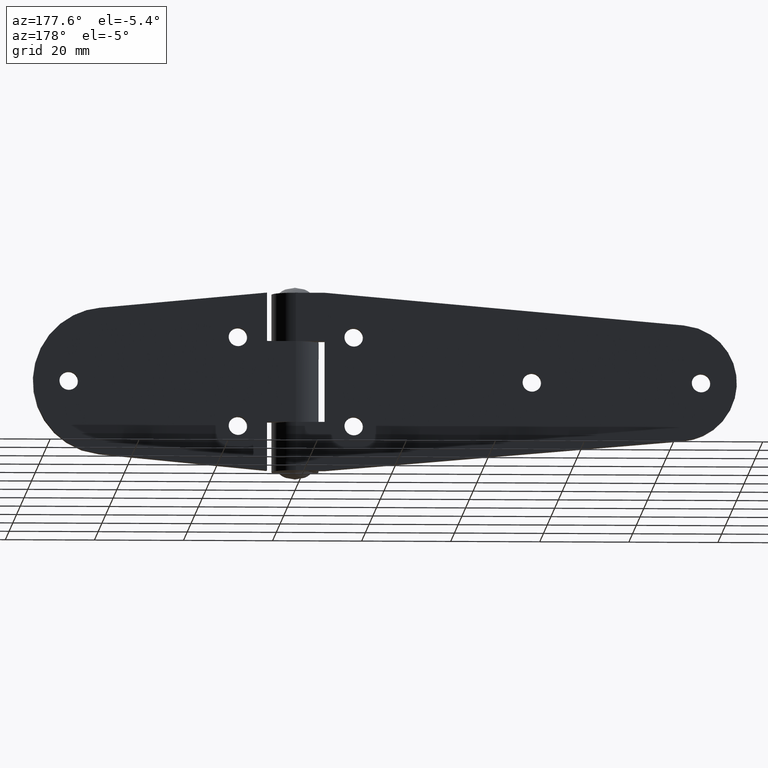
[diagram: clean part render]
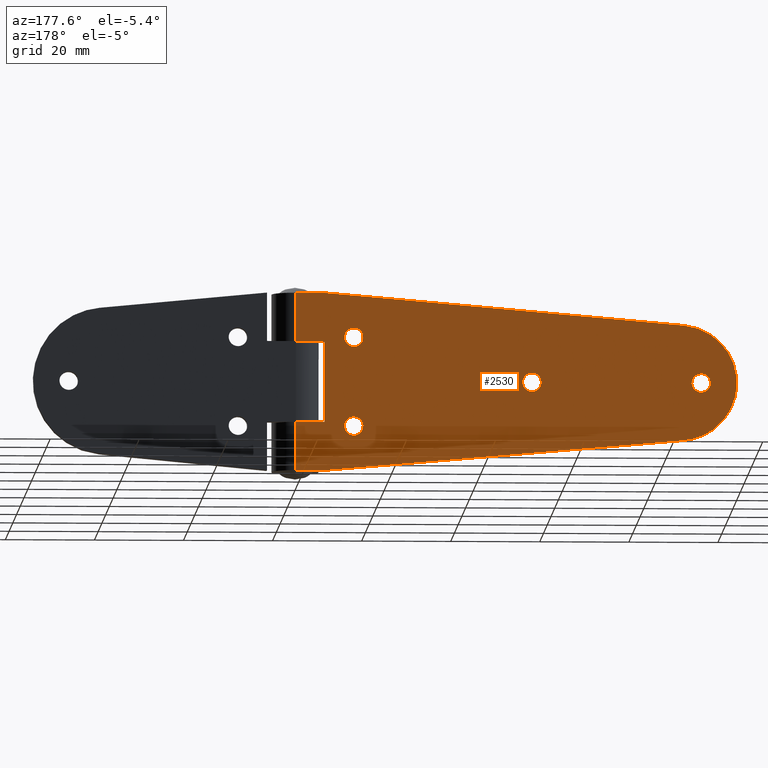
[diagram: same view with one face highlighted and labeled with its STEP entity id]
A machine part, auxiliary view. The second image highlights one B-rep face of the part: STEP entity #2530.
In plain terms, the highlighted face is a freeform B-spline surface patch.
Its self-contained STEP definition (entity closure, byte-faithful):
#1141=CARTESIAN_POINT('',(-93.093526400732628,5.299998000000000,20.164764102387469));
#1142=VERTEX_POINT('',#1141);
#1148=CARTESIAN_POINT('',(-91.0,5.299998000000000,22.100000000000001));
#1149=VERTEX_POINT('',#1148);
#1150=CARTESIAN_POINT('',(-91.0,5.299998000000000,22.100000000000001));
#1151=CARTESIAN_POINT('',(-92.941220029954195,5.299998000000001,22.099999999999998));
#1152=CARTESIAN_POINT('',(-93.093526400732628,5.299998000000000,20.164764102387476));
#1160=(BOUNDED_CURVE()B_SPLINE_CURVE(2,(#1150,#1151,#1152),.UNSPECIFIED.,.F.,.U.)B_SPLINE_CURVE_WITH_KNOTS((3,3),(0.0,0.236331300410210),.UNSPECIFIED.)CURVE()GEOMETRIC_REPRESENTATION_ITEM()RATIONAL_B_SPLINE_CURVE((1.0,0.723120658865939,0.969723355707355))REPRESENTATION_ITEM(''));
#1161=EDGE_CURVE('',#1149,#1142,#1160,.T.);
#1163=CARTESIAN_POINT('',(-88.906473599267372,5.299998000000000,19.835235897612531));
#1164=VERTEX_POINT('',#1163);
#1165=CARTESIAN_POINT('',(-88.906473599267372,5.299998000000000,19.835235897612524));
#1166=CARTESIAN_POINT('',(-88.899999999999991,5.299998000000000,19.917490773918590));
#1167=CARTESIAN_POINT('',(-88.899999999999991,5.299998000000000,20.0));
#1168=CARTESIAN_POINT('',(-88.899999999999977,5.299998000000000,22.099999999999998));
#1169=CARTESIAN_POINT('',(-91.0,5.299998000000000,22.100000000000001));
#1177=(BOUNDED_CURVE()B_SPLINE_CURVE(2,(#1165,#1166,#1167,#1168,#1169),.UNSPECIFIED.,.F.,.U.)B_SPLINE_CURVE_WITH_KNOTS((3,2,3),(0.736331300410209,0.750000000000000,1.0),.UNSPECIFIED.)CURVE()GEOMETRIC_REPRESENTATION_ITEM()RATIONAL_B_SPLINE_CURVE((0.969723355707354,0.983986122320608,1.0,0.707106781186548,1.0))REPRESENTATION_ITEM(''));
#1178=EDGE_CURVE('',#1164,#1149,#1177,.T.);
#1254=CARTESIAN_POINT('',(-91.0,5.299998000000000,17.899999999999999));
#1255=VERTEX_POINT('',#1254);
#1256=CARTESIAN_POINT('',(-91.0,5.299998000000000,17.899999999999999));
#1257=CARTESIAN_POINT('',(-89.058779970045777,5.299998000000000,17.900000000000002));
#1258=CARTESIAN_POINT('',(-88.906473599267372,5.299998000000000,19.835235897612524));
#1266=(BOUNDED_CURVE()B_SPLINE_CURVE(2,(#1256,#1257,#1258),.UNSPECIFIED.,.F.,.U.)B_SPLINE_CURVE_WITH_KNOTS((3,3),(0.500000000000000,0.736331300410209),.UNSPECIFIED.)CURVE()GEOMETRIC_REPRESENTATION_ITEM()RATIONAL_B_SPLINE_CURVE((1.0,0.723120658865940,0.969723355707353))REPRESENTATION_ITEM(''));
#1267=EDGE_CURVE('',#1255,#1164,#1266,.T.);
#1269=CARTESIAN_POINT('',(-93.093526400732628,5.299998000000000,20.164764102387473));
#1270=CARTESIAN_POINT('',(-93.100000000000009,5.299998000000000,20.082509226081410));
#1271=CARTESIAN_POINT('',(-93.100000000000009,5.299998000000000,20.0));
#1272=CARTESIAN_POINT('',(-93.100000000000009,5.299998000000000,17.899999999999999));
#1273=CARTESIAN_POINT('',(-91.0,5.299998000000000,17.899999999999999));
#1281=(BOUNDED_CURVE()B_SPLINE_CURVE(2,(#1269,#1270,#1271,#1272,#1273),.UNSPECIFIED.,.F.,.U.)B_SPLINE_CURVE_WITH_KNOTS((3,2,3),(0.236331300410209,0.250000000000000,0.500000000000000),.UNSPECIFIED.)CURVE()GEOMETRIC_REPRESENTATION_ITEM()RATIONAL_B_SPLINE_CURVE((0.969723355707355,0.983986122320608,1.0,0.707106781186548,1.0))REPRESENTATION_ITEM(''));
#1282=EDGE_CURVE('',#1142,#1255,#1281,.T.);
#1323=CARTESIAN_POINT('',(-55.093526400732607,5.299998000000001,20.164764102387469));
#1324=VERTEX_POINT('',#1323);
#1330=CARTESIAN_POINT('',(-53.0,5.299998000000000,22.100000000000001));
#1331=VERTEX_POINT('',#1330);
#1332=CARTESIAN_POINT('',(-53.0,5.299998000000000,22.100000000000001));
#1333=CARTESIAN_POINT('',(-54.941220029954188,5.299998000000000,22.100000000000005));
#1334=CARTESIAN_POINT('',(-55.093526400732607,5.299998000000001,20.164764102387466));
#1342=(BOUNDED_CURVE()B_SPLINE_CURVE(2,(#1332,#1333,#1334),.UNSPECIFIED.,.F.,.U.)B_SPLINE_CURVE_WITH_KNOTS((3,3),(0.0,0.236331300410209),.UNSPECIFIED.)CURVE()GEOMETRIC_REPRESENTATION_ITEM()RATIONAL_B_SPLINE_CURVE((1.0,0.723120658865939,0.969723355707355))REPRESENTATION_ITEM(''));
#1343=EDGE_CURVE('',#1331,#1324,#1342,.T.);
#1345=CARTESIAN_POINT('',(-50.906473599267393,5.299998000000000,19.835235897612531));
#1346=VERTEX_POINT('',#1345);
#1347=CARTESIAN_POINT('',(-50.906473599267386,5.299998000000000,19.835235897612524));
#1348=CARTESIAN_POINT('',(-50.900000000000006,5.299998000000000,19.917490773918598));
#1349=CARTESIAN_POINT('',(-50.899999999999999,5.299998000000000,20.0));
#1350=CARTESIAN_POINT('',(-50.899999999999999,5.299998000000000,22.099999999999998));
#1351=CARTESIAN_POINT('',(-53.0,5.299998000000000,22.100000000000001));
#1359=(BOUNDED_CURVE()B_SPLINE_CURVE(2,(#1347,#1348,#1349,#1350,#1351),.UNSPECIFIED.,.F.,.U.)B_SPLINE_CURVE_WITH_KNOTS((3,2,3),(0.736331300410209,0.750000000000000,1.0),.UNSPECIFIED.)CURVE()GEOMETRIC_REPRESENTATION_ITEM()RATIONAL_B_SPLINE_CURVE((0.969723355707355,0.983986122320608,1.0,0.707106781186548,1.0))REPRESENTATION_ITEM(''));
#1360=EDGE_CURVE('',#1346,#1331,#1359,.T.);
#1436=CARTESIAN_POINT('',(-53.0,5.299998000000000,17.899999999999999));
#1437=VERTEX_POINT('',#1436);
#1438=CARTESIAN_POINT('',(-53.0,5.299998000000000,17.899999999999999));
#1439=CARTESIAN_POINT('',(-51.058779970045819,5.299998000000000,17.900000000000002));
#1440=CARTESIAN_POINT('',(-50.906473599267386,5.299998000000000,19.835235897612524));
#1448=(BOUNDED_CURVE()B_SPLINE_CURVE(2,(#1438,#1439,#1440),.UNSPECIFIED.,.F.,.U.)B_SPLINE_CURVE_WITH_KNOTS((3,3),(0.500000000000000,0.736331300410209),.UNSPECIFIED.)CURVE()GEOMETRIC_REPRESENTATION_ITEM()RATIONAL_B_SPLINE_CURVE((1.0,0.723120658865940,0.969723355707353))REPRESENTATION_ITEM(''));
#1449=EDGE_CURVE('',#1437,#1346,#1448,.T.);
#1451=CARTESIAN_POINT('',(-55.093526400732607,5.299998000000001,20.164764102387466));
#1452=CARTESIAN_POINT('',(-55.099999999999994,5.299998000000000,20.082509226081413));
#1453=CARTESIAN_POINT('',(-55.099999999999987,5.299998000000000,20.0));
#1454=CARTESIAN_POINT('',(-55.100000000000001,5.299998000000000,17.899999999999999));
#1455=CARTESIAN_POINT('',(-53.0,5.299998000000000,17.899999999999999));
#1463=(BOUNDED_CURVE()B_SPLINE_CURVE(2,(#1451,#1452,#1453,#1454,#1455),.UNSPECIFIED.,.F.,.U.)B_SPLINE_CURVE_WITH_KNOTS((3,2,3),(0.236331300410209,0.250000000000000,0.500000000000000),.UNSPECIFIED.)CURVE()GEOMETRIC_REPRESENTATION_ITEM()RATIONAL_B_SPLINE_CURVE((0.969723355707355,0.983986122320608,1.0,0.707106781186548,1.0))REPRESENTATION_ITEM(''));
#1464=EDGE_CURVE('',#1324,#1437,#1463,.T.);
#1505=CARTESIAN_POINT('',(-15.093526400732809,5.299998000000000,30.164764102387469));
#1506=VERTEX_POINT('',#1505);
#1512=CARTESIAN_POINT('',(-13.000000000000201,5.299998000000000,32.099999999999987));
#1513=VERTEX_POINT('',#1512);
#1514=CARTESIAN_POINT('',(-13.000000000000201,5.299998000000000,32.099999999999987));
#1515=CARTESIAN_POINT('',(-14.941220029954387,5.299998000000000,32.099999999999987));
#1516=CARTESIAN_POINT('',(-15.093526400732816,5.299998000000000,30.164764102387476));
#1524=(BOUNDED_CURVE()B_SPLINE_CURVE(2,(#1514,#1515,#1516),.UNSPECIFIED.,.F.,.U.)B_SPLINE_CURVE_WITH_KNOTS((3,3),(0.0,0.236331300410209),.UNSPECIFIED.)CURVE()GEOMETRIC_REPRESENTATION_ITEM()RATIONAL_B_SPLINE_CURVE((1.0,0.723120658865940,0.969723355707354))REPRESENTATION_ITEM(''));
#1525=EDGE_CURVE('',#1513,#1506,#1524,.T.);
#1527=CARTESIAN_POINT('',(-10.906473599267590,5.299998000000000,29.835235897612531));
#1528=VERTEX_POINT('',#1527);
#1529=CARTESIAN_POINT('',(-10.906473599267583,5.299998000000000,29.835235897612531));
#1530=CARTESIAN_POINT('',(-10.900000000000203,5.299998000000000,29.917490773918583));
#1531=CARTESIAN_POINT('',(-10.900000000000199,5.299998000000000,30.0));
#1532=CARTESIAN_POINT('',(-10.900000000000199,5.299998000000000,32.099999999999987));
#1533=CARTESIAN_POINT('',(-13.000000000000201,5.299998000000000,32.099999999999987));
#1541=(BOUNDED_CURVE()B_SPLINE_CURVE(2,(#1529,#1530,#1531,#1532,#1533),.UNSPECIFIED.,.F.,.U.)B_SPLINE_CURVE_WITH_KNOTS((3,2,3),(0.736331300410209,0.750000000000000,1.0),.UNSPECIFIED.)CURVE()GEOMETRIC_REPRESENTATION_ITEM()RATIONAL_B_SPLINE_CURVE((0.969723355707355,0.983986122320608,1.0,0.707106781186548,1.0))REPRESENTATION_ITEM(''));
#1542=EDGE_CURVE('',#1528,#1513,#1541,.T.);
#1618=CARTESIAN_POINT('',(-13.000000000000201,5.299998000000000,27.899999999999999));
#1619=VERTEX_POINT('',#1618);
#1620=CARTESIAN_POINT('',(-13.000000000000201,5.299998000000000,27.899999999999999));
#1621=CARTESIAN_POINT('',(-11.058779970046020,5.299998000000000,27.900000000000002));
#1622=CARTESIAN_POINT('',(-10.906473599267589,5.299998000000000,29.835235897612527));
#1630=(BOUNDED_CURVE()B_SPLINE_CURVE(2,(#1620,#1621,#1622),.UNSPECIFIED.,.F.,.U.)B_SPLINE_CURVE_WITH_KNOTS((3,3),(0.500000000000000,0.736331300410209),.UNSPECIFIED.)CURVE()GEOMETRIC_REPRESENTATION_ITEM()RATIONAL_B_SPLINE_CURVE((1.0,0.723120658865940,0.969723355707353))REPRESENTATION_ITEM(''));
#1631=EDGE_CURVE('',#1619,#1528,#1630,.T.);
#1633=CARTESIAN_POINT('',(-15.093526400732818,5.299998000000000,30.164764102387469));
#1634=CARTESIAN_POINT('',(-15.100000000000202,5.299998000000000,30.082509226081410));
#1635=CARTESIAN_POINT('',(-15.100000000000200,5.299998000000000,30.0));
#1636=CARTESIAN_POINT('',(-15.100000000000200,5.299998000000000,27.900000000000002));
#1637=CARTESIAN_POINT('',(-13.000000000000201,5.299998000000000,27.899999999999999));
#1645=(BOUNDED_CURVE()B_SPLINE_CURVE(2,(#1633,#1634,#1635,#1636,#1637),.UNSPECIFIED.,.F.,.U.)B_SPLINE_CURVE_WITH_KNOTS((3,2,3),(0.236331300410209,0.250000000000000,0.500000000000000),.UNSPECIFIED.)CURVE()GEOMETRIC_REPRESENTATION_ITEM()RATIONAL_B_SPLINE_CURVE((0.969723355707354,0.983986122320608,1.0,0.707106781186548,1.0))REPRESENTATION_ITEM(''));
#1646=EDGE_CURVE('',#1506,#1619,#1645,.T.);
#1687=CARTESIAN_POINT('',(-15.093526400732809,5.299998000000000,10.164764102387471));
#1688=VERTEX_POINT('',#1687);
#1694=CARTESIAN_POINT('',(-13.000000000000201,5.299998000000000,12.100000000000000));
#1695=VERTEX_POINT('',#1694);
#1696=CARTESIAN_POINT('',(-13.000000000000201,5.299998000000000,12.100000000000000));
#1697=CARTESIAN_POINT('',(-14.941220029954389,5.299998000000001,12.099999999999998));
#1698=CARTESIAN_POINT('',(-15.093526400732815,5.299998000000000,10.164764102387473));
#1706=(BOUNDED_CURVE()B_SPLINE_CURVE(2,(#1696,#1697,#1698),.UNSPECIFIED.,.F.,.U.)B_SPLINE_CURVE_WITH_KNOTS((3,3),(0.0,0.236331300410209),.UNSPECIFIED.)CURVE()GEOMETRIC_REPRESENTATION_ITEM()RATIONAL_B_SPLINE_CURVE((1.0,0.723120658865939,0.969723355707354))REPRESENTATION_ITEM(''));
#1707=EDGE_CURVE('',#1695,#1688,#1706,.T.);
#1709=CARTESIAN_POINT('',(-10.906473599267590,5.299998000000000,9.835235897612527));
#1710=VERTEX_POINT('',#1709);
#1711=CARTESIAN_POINT('',(-10.906473599267587,5.299998000000000,9.835235897612527));
#1712=CARTESIAN_POINT('',(-10.900000000000196,5.299998000000000,9.917490773918589));
#1713=CARTESIAN_POINT('',(-10.900000000000199,5.299998000000000,10.0));
#1714=CARTESIAN_POINT('',(-10.900000000000199,5.299998000000000,12.099999999999998));
#1715=CARTESIAN_POINT('',(-13.000000000000201,5.299998000000000,12.100000000000000));
#1723=(BOUNDED_CURVE()B_SPLINE_CURVE(2,(#1711,#1712,#1713,#1714,#1715),.UNSPECIFIED.,.F.,.U.)B_SPLINE_CURVE_WITH_KNOTS((3,2,3),(0.736331300410209,0.750000000000000,1.0),.UNSPECIFIED.)CURVE()GEOMETRIC_REPRESENTATION_ITEM()RATIONAL_B_SPLINE_CURVE((0.969723355707354,0.983986122320608,1.0,0.707106781186548,1.0))REPRESENTATION_ITEM(''));
#1724=EDGE_CURVE('',#1710,#1695,#1723,.T.);
#1800=CARTESIAN_POINT('',(-13.000000000000201,5.299998000000000,7.900000000000000));
#1801=VERTEX_POINT('',#1800);
#1802=CARTESIAN_POINT('',(-13.000000000000201,5.299998000000000,7.900000000000000));
#1803=CARTESIAN_POINT('',(-11.058779970046020,5.299998000000000,7.900000000000000));
#1804=CARTESIAN_POINT('',(-10.906473599267589,5.299998000000000,9.835235897612527));
#1812=(BOUNDED_CURVE()B_SPLINE_CURVE(2,(#1802,#1803,#1804),.UNSPECIFIED.,.F.,.U.)B_SPLINE_CURVE_WITH_KNOTS((3,3),(0.500000000000000,0.736331300410209),.UNSPECIFIED.)CURVE()GEOMETRIC_REPRESENTATION_ITEM()RATIONAL_B_SPLINE_CURVE((1.0,0.723120658865940,0.969723355707353))REPRESENTATION_ITEM(''));
#1813=EDGE_CURVE('',#1801,#1710,#1812,.T.);
#1815=CARTESIAN_POINT('',(-15.093526400732816,5.299998000000000,10.164764102387473));
#1816=CARTESIAN_POINT('',(-15.100000000000202,5.299998000000000,10.082509226081410));
#1817=CARTESIAN_POINT('',(-15.100000000000200,5.299998000000000,10.0));
#1818=CARTESIAN_POINT('',(-15.100000000000200,5.299998000000000,7.900000000000000));
#1819=CARTESIAN_POINT('',(-13.000000000000201,5.299998000000000,7.900000000000000));
#1827=(BOUNDED_CURVE()B_SPLINE_CURVE(2,(#1815,#1816,#1817,#1818,#1819),.UNSPECIFIED.,.F.,.U.)B_SPLINE_CURVE_WITH_KNOTS((3,2,3),(0.236331300410209,0.250000000000000,0.500000000000000),.UNSPECIFIED.)CURVE()GEOMETRIC_REPRESENTATION_ITEM()RATIONAL_B_SPLINE_CURVE((0.969723355707354,0.983986122320608,1.0,0.707106781186548,1.0))REPRESENTATION_ITEM(''));
#1828=EDGE_CURVE('',#1688,#1801,#1827,.T.);
#1839=CARTESIAN_POINT('',(-87.132227673884998,5.299998000000000,7.049399222642639));
#1840=VERTEX_POINT('',#1839);
#1841=CARTESIAN_POINT('',(-6.500014999999779,5.299998000000000,-9.540979E-015));
#1842=VERTEX_POINT('',#1841);
#1843=CARTESIAN_POINT('',(-87.132227673884998,5.299998000000000,7.049399222642639));
#1844=CARTESIAN_POINT('',(-6.500014999999779,5.299998000000000,-9.540979E-015));
#1845=QUASI_UNIFORM_CURVE('',1,(#1843,#1844),.UNSPECIFIED.,.F.,.U.);
#1846=EDGE_CURVE('',#1840,#1842,#1845,.T.);
#1875=CARTESIAN_POINT('',(-6.500000000000000,5.299998000000000,40.0));
#1876=VERTEX_POINT('',#1875);
#1877=CARTESIAN_POINT('',(-87.132232999999999,5.299998000000000,32.950606999999998));
#1878=VERTEX_POINT('',#1877);
#1879=CARTESIAN_POINT('',(-6.500000000000000,5.299998000000000,40.0));
#1880=CARTESIAN_POINT('',(-87.132232999999999,5.299998000000000,32.950606999999998));
#1881=QUASI_UNIFORM_CURVE('',1,(#1879,#1880),.UNSPECIFIED.,.F.,.U.);
#1882=EDGE_CURVE('',#1876,#1878,#1881,.T.);
#1924=CARTESIAN_POINT('',(-87.132232999999999,5.299998000000000,32.950606999999998));
#1925=CARTESIAN_POINT('',(-99.000002739852235,5.299998000000000,31.913042968783593));
#1926=CARTESIAN_POINT('',(-99.000000290150567,5.299998000000000,20.000000936818999));
#1927=CARTESIAN_POINT('',(-98.999997840448899,5.299998000000000,8.086958904854408));
#1928=CARTESIAN_POINT('',(-87.132227673884998,5.299998000000000,7.049399222642639));
#1936=(BOUNDED_CURVE()B_SPLINE_CURVE(2,(#1924,#1925,#1926,#1927,#1928),.UNSPECIFIED.,.F.,.U.)B_SPLINE_CURVE_WITH_KNOTS((3,2,3),(0.0,0.500000000000000,1.0),.UNSPECIFIED.)CURVE()GEOMETRIC_REPRESENTATION_ITEM()RATIONAL_B_SPLINE_CURVE((1.0,0.737256610341331,1.0,0.737256610341331,1.0))REPRESENTATION_ITEM(''));
#1937=EDGE_CURVE('',#1878,#1840,#1936,.T.);
#1994=CARTESIAN_POINT('',(0.0,5.299998000000000,10.899994000000000));
#1995=VERTEX_POINT('',#1994);
#2015=CARTESIAN_POINT('',(-6.500000000000000,5.299998000000000,10.899994000000000));
#2016=VERTEX_POINT('',#2015);
#2017=CARTESIAN_POINT('',(0.0,5.299998000000000,10.899994000000000));
#2018=CARTESIAN_POINT('',(-6.500000000000000,5.299998000000000,10.899994000000000));
#2019=QUASI_UNIFORM_CURVE('',1,(#2017,#2018),.UNSPECIFIED.,.F.,.U.);
#2020=EDGE_CURVE('',#1995,#2016,#2019,.T.);
#2044=CARTESIAN_POINT('',(-6.500000000000000,5.299998000000000,29.099990999999900));
#2045=VERTEX_POINT('',#2044);
#2051=CARTESIAN_POINT('',(0.0,5.299998000000000,29.099990999999900));
#2052=VERTEX_POINT('',#2051);
#2053=CARTESIAN_POINT('',(-6.500000000000000,5.299998000000000,29.099990999999900));
#2054=CARTESIAN_POINT('',(0.0,5.299998000000000,29.099990999999900));
#2055=QUASI_UNIFORM_CURVE('',1,(#2053,#2054),.UNSPECIFIED.,.F.,.U.);
#2056=EDGE_CURVE('',#2045,#2052,#2055,.T.);
#2121=CARTESIAN_POINT('',(-6.500000000000000,5.299998000000000,10.899994000000000));
#2122=CARTESIAN_POINT('',(-6.500000000000000,5.299998000000000,29.099990999999900));
#2123=QUASI_UNIFORM_CURVE('',1,(#2121,#2122),.UNSPECIFIED.,.F.,.U.);
#2124=EDGE_CURVE('',#2016,#2045,#2123,.T.);
#2141=CARTESIAN_POINT('',(9.739208E-015,5.299998000000000,0.0));
#2142=VERTEX_POINT('',#2141);
#2143=CARTESIAN_POINT('',(9.739208E-015,5.299998000000000,0.0));
#2144=CARTESIAN_POINT('',(-6.500014999999779,5.299998000000000,-9.540979E-015));
#2145=QUASI_UNIFORM_CURVE('',1,(#2143,#2144),.UNSPECIFIED.,.F.,.U.);
#2146=EDGE_CURVE('',#2142,#1842,#2145,.T.);
#2210=CARTESIAN_POINT('',(9.739208E-015,5.299998000000000,40.0));
#2211=VERTEX_POINT('',#2210);
#2212=CARTESIAN_POINT('',(9.739208E-015,5.299998000000000,40.0));
#2213=CARTESIAN_POINT('',(-6.500000000000000,5.299998000000000,40.0));
#2214=QUASI_UNIFORM_CURVE('',1,(#2212,#2213),.UNSPECIFIED.,.F.,.U.);
#2215=EDGE_CURVE('',#2211,#1876,#2214,.T.);
#2303=CARTESIAN_POINT('',(9.739208E-015,5.299998000000000,40.0));
#2304=CARTESIAN_POINT('',(0.0,5.299998000000000,29.099990999999900));
#2305=QUASI_UNIFORM_CURVE('',1,(#2303,#2304),.UNSPECIFIED.,.F.,.U.);
#2306=EDGE_CURVE('',#2211,#2052,#2305,.T.);
#2387=CARTESIAN_POINT('',(0.0,5.299998000000000,10.899994000000000));
#2388=CARTESIAN_POINT('',(9.739208E-015,5.299998000000000,0.0));
#2389=QUASI_UNIFORM_CURVE('',1,(#2387,#2388),.UNSPECIFIED.,.F.,.U.);
#2390=EDGE_CURVE('',#1995,#2142,#2389,.T.);
#2489=CARTESIAN_POINT('',(-103.945050112762000,5.299998000000000,41.997999922472239));
#2490=CARTESIAN_POINT('',(-103.945050112762000,5.299998000000000,-1.998000995355855));
#2491=CARTESIAN_POINT('',(4.945052477998730,5.299998000000000,41.997999922472239));
#2492=CARTESIAN_POINT('',(4.945052477998730,5.299998000000000,-1.998000995355855));
#2493=B_SPLINE_SURFACE_WITH_KNOTS('',1,1,((#2489,#2491),(#2490,#2492)),.UNSPECIFIED.,.F.,.F.,.U.,(2,2),(2,2),(0.0,43.996000917828091),(0.0,108.890102590760700),.UNSPECIFIED.);
#2494=ORIENTED_EDGE('',*,*,#1937,.F.);
#2495=ORIENTED_EDGE('',*,*,#1882,.F.);
#2496=ORIENTED_EDGE('',*,*,#2215,.F.);
#2497=ORIENTED_EDGE('',*,*,#2306,.T.);
#2498=ORIENTED_EDGE('',*,*,#2056,.F.);
#2499=ORIENTED_EDGE('',*,*,#2124,.F.);
#2500=ORIENTED_EDGE('',*,*,#2020,.F.);
#2501=ORIENTED_EDGE('',*,*,#2390,.T.);
#2502=ORIENTED_EDGE('',*,*,#2146,.T.);
#2503=ORIENTED_EDGE('',*,*,#1846,.F.);
#2504=EDGE_LOOP('',(#2494,#2495,#2496,#2497,#2498,#2499,#2500,#2501,#2502,#2503));
#2505=FACE_OUTER_BOUND('',#2504,.T.);
#2506=ORIENTED_EDGE('',*,*,#1813,.T.);
#2507=ORIENTED_EDGE('',*,*,#1724,.T.);
#2508=ORIENTED_EDGE('',*,*,#1707,.T.);
#2509=ORIENTED_EDGE('',*,*,#1828,.T.);
#2510=EDGE_LOOP('',(#2506,#2507,#2508,#2509));
#2511=FACE_BOUND('',#2510,.T.);
#2512=ORIENTED_EDGE('',*,*,#1631,.T.);
#2513=ORIENTED_EDGE('',*,*,#1542,.T.);
#2514=ORIENTED_EDGE('',*,*,#1525,.T.);
#2515=ORIENTED_EDGE('',*,*,#1646,.T.);
#2516=EDGE_LOOP('',(#2512,#2513,#2514,#2515));
#2517=FACE_BOUND('',#2516,.T.);
#2518=ORIENTED_EDGE('',*,*,#1449,.T.);
#2519=ORIENTED_EDGE('',*,*,#1360,.T.);
#2520=ORIENTED_EDGE('',*,*,#1343,.T.);
#2521=ORIENTED_EDGE('',*,*,#1464,.T.);
#2522=EDGE_LOOP('',(#2518,#2519,#2520,#2521));
#2523=FACE_BOUND('',#2522,.T.);
#2524=ORIENTED_EDGE('',*,*,#1267,.T.);
#2525=ORIENTED_EDGE('',*,*,#1178,.T.);
#2526=ORIENTED_EDGE('',*,*,#1161,.T.);
#2527=ORIENTED_EDGE('',*,*,#1282,.T.);
#2528=EDGE_LOOP('',(#2524,#2525,#2526,#2527));
#2529=FACE_BOUND('',#2528,.T.);
#2530=ADVANCED_FACE('',(#2505,#2511,#2517,#2523,#2529),#2493,.F.);